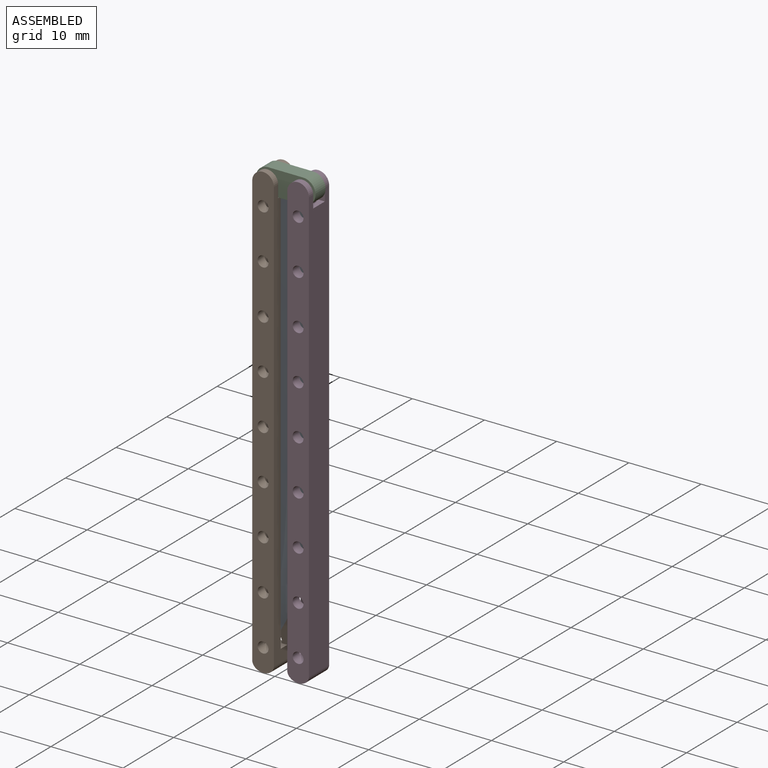
[diagram: assembled view]
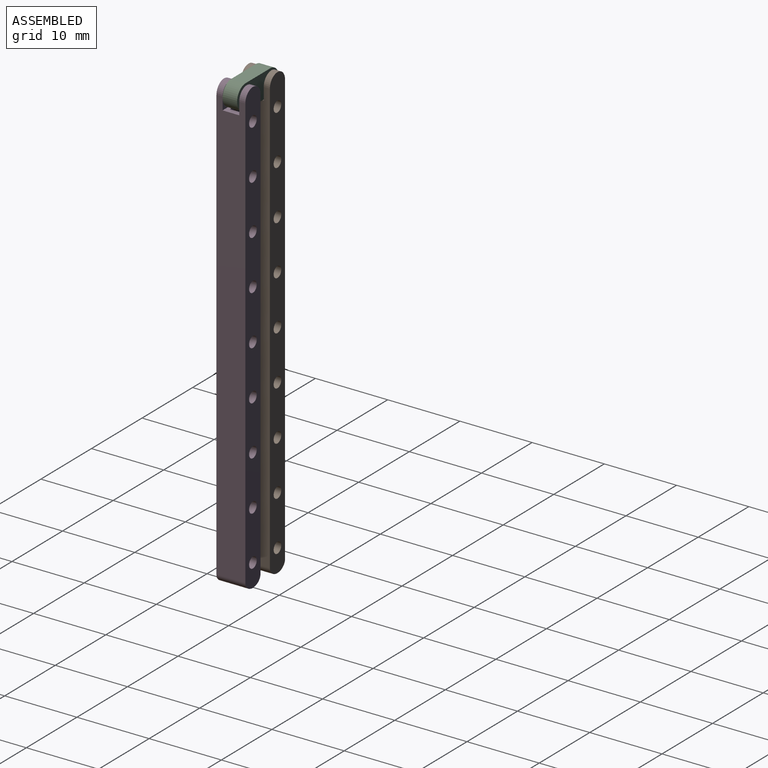
[diagram: assembled view, second angle]
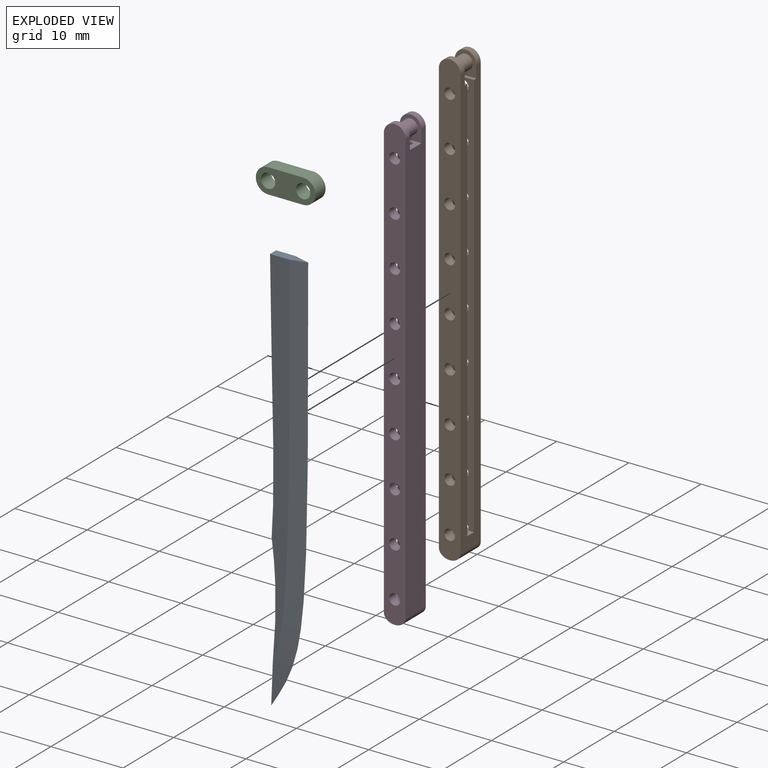
[diagram: exploded view]
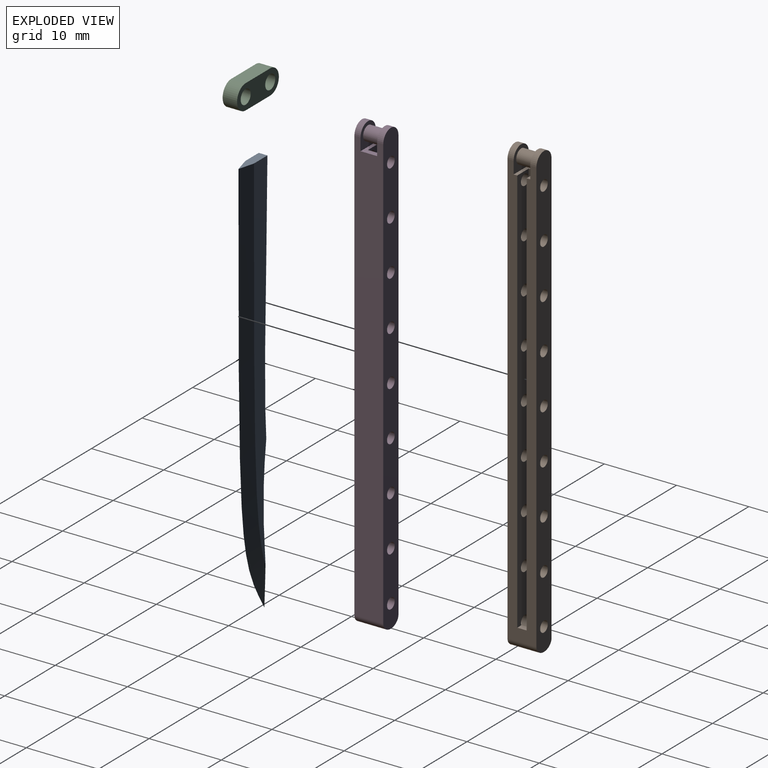
[diagram: exploded view, second angle]
ASSEMBLY  parts=4 mates=3
PART A: 10 faces, bbox 8.5x1.2x62.1 mm
  f0: plane 4.85x1.2mm, normal (0,0,-1), area 4.5mm2, adj f1,f6,f7,f8,f9
  f1: cylinder r=1.71mm len=1.2mm, axis (0,1,0), area 0mm2, adj f0,f2,f6,f7
  f2: plane 1.2x0.02mm, normal (1,0,0), area 0mm2, adj f1,f3,f6,f7
  f3: extruded ~35.35x1.2mm, area 42.4mm2, adj f2,f4,f6,f7
  f4: extruded ~17.89x1.2mm, area 21.1mm2, adj f3,f5,f6,f7,f8,f9
  f5: extruded ~3.54x0.8mm, area 1.4mm2, adj f4,f8,f9
  f6: plane 51.34x2.68mm, normal (0,-1,0), area 101.1mm2, adj f0,f1,f2,f3,f4,f8
  f7: plane 51.34x2.68mm, normal (0,1,0), area 101.1mm2, adj f0,f1,f2,f3,f4,f9
  f8: bspline ~62.05x8.51mm, area 124.6mm2, adj f0,f4,f5,f6,f9
  f9: bspline ~62.05x8.54mm, area 124.6mm2, adj f0,f4,f5,f7,f8
PART B: 36 faces, bbox 3x4x62.7 mm
  f0: plane 1.3x0.8mm, normal (0,0,1), area 1mm2, adj f5,f17,f18,f27
  f1: plane 0.28x0.05mm, normal (0,-1,0), area 0mm2, adj f15,f16,f27
  f2: plane 0.28x0.05mm, normal (0,1,0), area 0mm2, adj f15,f16,f27
  f3: cylinder r=1.5mm len=3mm, axis (0,1,0), area 4mm2, adj f5,f7,f9,f13
  f4: cylinder r=1.5mm len=3mm, axis (0,1,0), area 4mm2, adj f5,f7,f8,f14
  f5: plane 60x4mm, normal (1,0,0), area 162.5mm2, adj f0,f3,f4,f6,f8,f9,f11,f13
  f6: extruded ~4x3mm, area 16.9mm2, adj f5,f7,f8,f9
  f7: plane 60x4mm, normal (-1,0,0), area 236.1mm2, adj f3,f4,f6,f8,f9,f11,f13,f14
  f8: plane 62.69x3mm, normal (0,-1,0), area 170.4mm2, adj f4,f5,f6,f7,f19,f20,f21,f22
  f9: plane 62.69x3mm, normal (0,1,0), area 170.4mm2, adj f3,f5,f6,f7,f27,f28,f29,f30
  f10: cylinder r=0.99mm len=2.3mm, axis (0,-1,0), area 14.3mm2, adj f12,f13,f14
  f11: plane 3x2.3mm, normal (0,0,1), area 4mm2, adj f5,f7,f13,f14,f16,f17,f18
  f12: plane 2.3x0mm, normal (0,0,1), area 0mm2, adj f10,f13,f14
  f13: plane 3.21x3mm, normal (0,-1,0), area 5.6mm2, adj f3,f5,f7,f10,f11,f12
  f14: plane 3.21x3mm, normal (0,1,0), area 5.6mm2, adj f4,f5,f7,f10,f11,f12
  f15: plane 1.3x0.05mm, normal (0,0,1), area 0.1mm2, adj f1,f2,f16,f27
  f16: plane 56.59x1.3mm, normal (1,0,0), area 73.6mm2, adj f1,f2,f11,f15,f17,f18
  f17: plane 56.59x2.25mm, normal (0,-1,0), area 111.9mm2, adj f0,f5,f11,f16,f27,f28,f29,f30
  f18: plane 56.59x2.25mm, normal (0,1,0), area 111.9mm2, adj f0,f5,f11,f16,f19,f20,f21,f22
  f19: cylinder r=0.75mm len=1.5mm, axis (0,-1,0), area 6.4mm2, adj f8,f18
  f20: cylinder r=0.75mm len=1.5mm, axis (0,-1,0), area 6.4mm2, adj f8,f18
  f21: cylinder r=0.75mm len=1.5mm, axis (0,-1,0), area 6.4mm2, adj f8,f18
  f22: cylinder r=0.75mm len=1.5mm, axis (0,-1,0), area 6.4mm2, adj f8,f18
  f23: cylinder r=0.75mm len=1.5mm, axis (0,-1,0), area 6.4mm2, adj f8,f18
  f24: cylinder r=0.75mm len=1.5mm, axis (0,-1,0), area 6.4mm2, adj f8,f18
  f25: cylinder r=0.75mm len=1.5mm, axis (0,-1,0), area 6.4mm2, adj f8,f18
  f26: cylinder r=0.75mm len=1.5mm, axis (0,-1,0), area 6.4mm2, adj f8,f18
  f27: cylinder r=0.75mm len=4mm, axis (0,-1,0), area 15mm2, adj f0,f1,f2,f8,f9,f15,f17,f18
  f28: cylinder r=0.75mm len=1.5mm, axis (0,-1,0), area 6.4mm2, adj f9,f17
  f29: cylinder r=0.75mm len=1.5mm, axis (0,-1,0), area 6.4mm2, adj f9,f17
  f30: cylinder r=0.75mm len=1.5mm, axis (0,-1,0), area 6.4mm2, adj f9,f17
  f31: cylinder r=0.75mm len=1.5mm, axis (0,-1,0), area 6.4mm2, adj f9,f17
  f32: cylinder r=0.75mm len=1.5mm, axis (0,-1,0), area 6.4mm2, adj f9,f17
  f33: cylinder r=0.75mm len=1.5mm, axis (0,-1,0), area 6.4mm2, adj f9,f17
  f34: cylinder r=0.75mm len=1.5mm, axis (0,-1,0), area 6.4mm2, adj f9,f17
  f35: cylinder r=0.75mm len=1.5mm, axis (0,-1,0), area 6.4mm2, adj f9,f17
PART C: 9 faces, bbox 8.3x2x3.4 mm
  f0: plane 2x0mm, normal (0,0,-1), area 0mm2, adj f6,f7,f8
  f1: plane 4.85x2mm, normal (0,0,-1), area 9.7mm2, adj f2,f4,f7,f8
  f2: cylinder r=1.71mm len=3.41mm, axis (0,1,0), area 10.7mm2, adj f1,f3,f7,f8
  f3: plane 4.85x2mm, normal (0,0,1), area 9.7mm2, adj f2,f4,f7,f8
  f4: cylinder r=1.71mm len=3.41mm, axis (0,1,0), area 10.7mm2, adj f1,f3,f7,f8
  f5: cylinder r=0.99mm len=2mm, axis (0,1,0), area 12.4mm2, adj f7,f8
  f6: cylinder r=0.99mm len=2mm, axis (0,1,0), area 12.4mm2, adj f0,f7,f8
  f7: plane 8.26x3.41mm, normal (0,-1,0), area 19.5mm2, adj f0,f1,f2,f3,f4,f5,f6
  f8: plane 8.26x3.41mm, normal (0,1,0), area 19.5mm2, adj f0,f1,f2,f3,f4,f5,f6
PART D: 36 faces, bbox 3x4x62.7 mm
  f0: plane 1.3x0.8mm, normal (0,0,1), area 1mm2, adj f5,f17,f18,f27
  f1: plane 0.28x0.05mm, normal (0,-1,0), area 0mm2, adj f15,f16,f27
  f2: plane 0.28x0.05mm, normal (0,1,0), area 0mm2, adj f15,f16,f27
  f3: cylinder r=1.5mm len=3mm, axis (0,1,0), area 4mm2, adj f5,f7,f9,f13
  f4: cylinder r=1.5mm len=3mm, axis (0,1,0), area 4mm2, adj f5,f7,f8,f14
  f5: plane 60x4mm, normal (-1,0,0), area 162.5mm2, adj f0,f3,f4,f6,f8,f9,f11,f13
  f6: extruded ~4x3mm, area 16.9mm2, adj f5,f7,f8,f9
  f7: plane 60x4mm, normal (1,0,0), area 236.1mm2, adj f3,f4,f6,f8,f9,f11,f13,f14
  f8: plane 62.69x3mm, normal (0,-1,0), area 170.4mm2, adj f4,f5,f6,f7,f19,f20,f21,f22
  f9: plane 62.69x3mm, normal (0,1,0), area 170.4mm2, adj f3,f5,f6,f7,f27,f28,f29,f30
  f10: cylinder r=0.99mm len=2.3mm, axis (0,-1,0), area 14.3mm2, adj f12,f13,f14
  f11: plane 3x2.3mm, normal (0,0,1), area 4mm2, adj f5,f7,f13,f14,f16,f17,f18
  f12: plane 2.3x0mm, normal (0,0,1), area 0mm2, adj f10,f13,f14
  f13: plane 3.21x3mm, normal (0,-1,0), area 5.6mm2, adj f3,f5,f7,f10,f11,f12
  f14: plane 3.21x3mm, normal (0,1,0), area 5.6mm2, adj f4,f5,f7,f10,f11,f12
  f15: plane 1.3x0.05mm, normal (0,0,1), area 0.1mm2, adj f1,f2,f16,f27
  f16: plane 56.59x1.3mm, normal (-1,0,0), area 73.6mm2, adj f1,f2,f11,f15,f17,f18
  f17: plane 56.59x2.25mm, normal (0,-1,0), area 111.9mm2, adj f0,f5,f11,f16,f27,f28,f29,f30
  f18: plane 56.59x2.25mm, normal (0,1,0), area 111.9mm2, adj f0,f5,f11,f16,f19,f20,f21,f22
  f19: cylinder r=0.75mm len=1.5mm, axis (0,-1,0), area 6.4mm2, adj f8,f18
  f20: cylinder r=0.75mm len=1.5mm, axis (0,-1,0), area 6.4mm2, adj f8,f18
  f21: cylinder r=0.75mm len=1.5mm, axis (0,-1,0), area 6.4mm2, adj f8,f18
  f22: cylinder r=0.75mm len=1.5mm, axis (0,-1,0), area 6.4mm2, adj f8,f18
  f23: cylinder r=0.75mm len=1.5mm, axis (0,-1,0), area 6.4mm2, adj f8,f18
  f24: cylinder r=0.75mm len=1.5mm, axis (0,-1,0), area 6.4mm2, adj f8,f18
  f25: cylinder r=0.75mm len=1.5mm, axis (0,-1,0), area 6.4mm2, adj f8,f18
  f26: cylinder r=0.75mm len=1.5mm, axis (0,-1,0), area 6.4mm2, adj f8,f18
  f27: cylinder r=0.75mm len=4mm, axis (0,-1,0), area 15mm2, adj f0,f1,f2,f8,f9,f15,f17,f18
  f28: cylinder r=0.75mm len=1.5mm, axis (0,-1,0), area 6.4mm2, adj f9,f17
  f29: cylinder r=0.75mm len=1.5mm, axis (0,-1,0), area 6.4mm2, adj f9,f17
  f30: cylinder r=0.75mm len=1.5mm, axis (0,-1,0), area 6.4mm2, adj f9,f17
  f31: cylinder r=0.75mm len=1.5mm, axis (0,-1,0), area 6.4mm2, adj f9,f17
  f32: cylinder r=0.75mm len=1.5mm, axis (0,-1,0), area 6.4mm2, adj f9,f17
  f33: cylinder r=0.75mm len=1.5mm, axis (0,-1,0), area 6.4mm2, adj f9,f17
  f34: cylinder r=0.75mm len=1.5mm, axis (0,-1,0), area 6.4mm2, adj f9,f17
  f35: cylinder r=0.75mm len=1.5mm, axis (0,-1,0), area 6.4mm2, adj f9,f17
PLACE A rot(axis=(0,-1,0),180deg) t=(137.53,51.68,-47.84)mm
PLACE B t=(133.66,51.68,-47.84)mm fixed
PLACE C rot(axis=(0,-1,0),180deg) t=(137.53,51.68,-47.84)mm
PLACE D rot(axis=(0,1,0),0deg) t=(143.37,51.68,-47.84)mm
MATE revolute D.f3 <-> C.f4  axis (0,-1,0) through (140.45,49.68,-47.84)mm
MATE revolute B.f3 <-> C.f2  axis (0,-1,0) through (135.6,49.68,-47.84)mm
MATE fastened A.f0 <-> C.f3  axis (0,0,1) through (137.52,51.68,-49.55)mm
